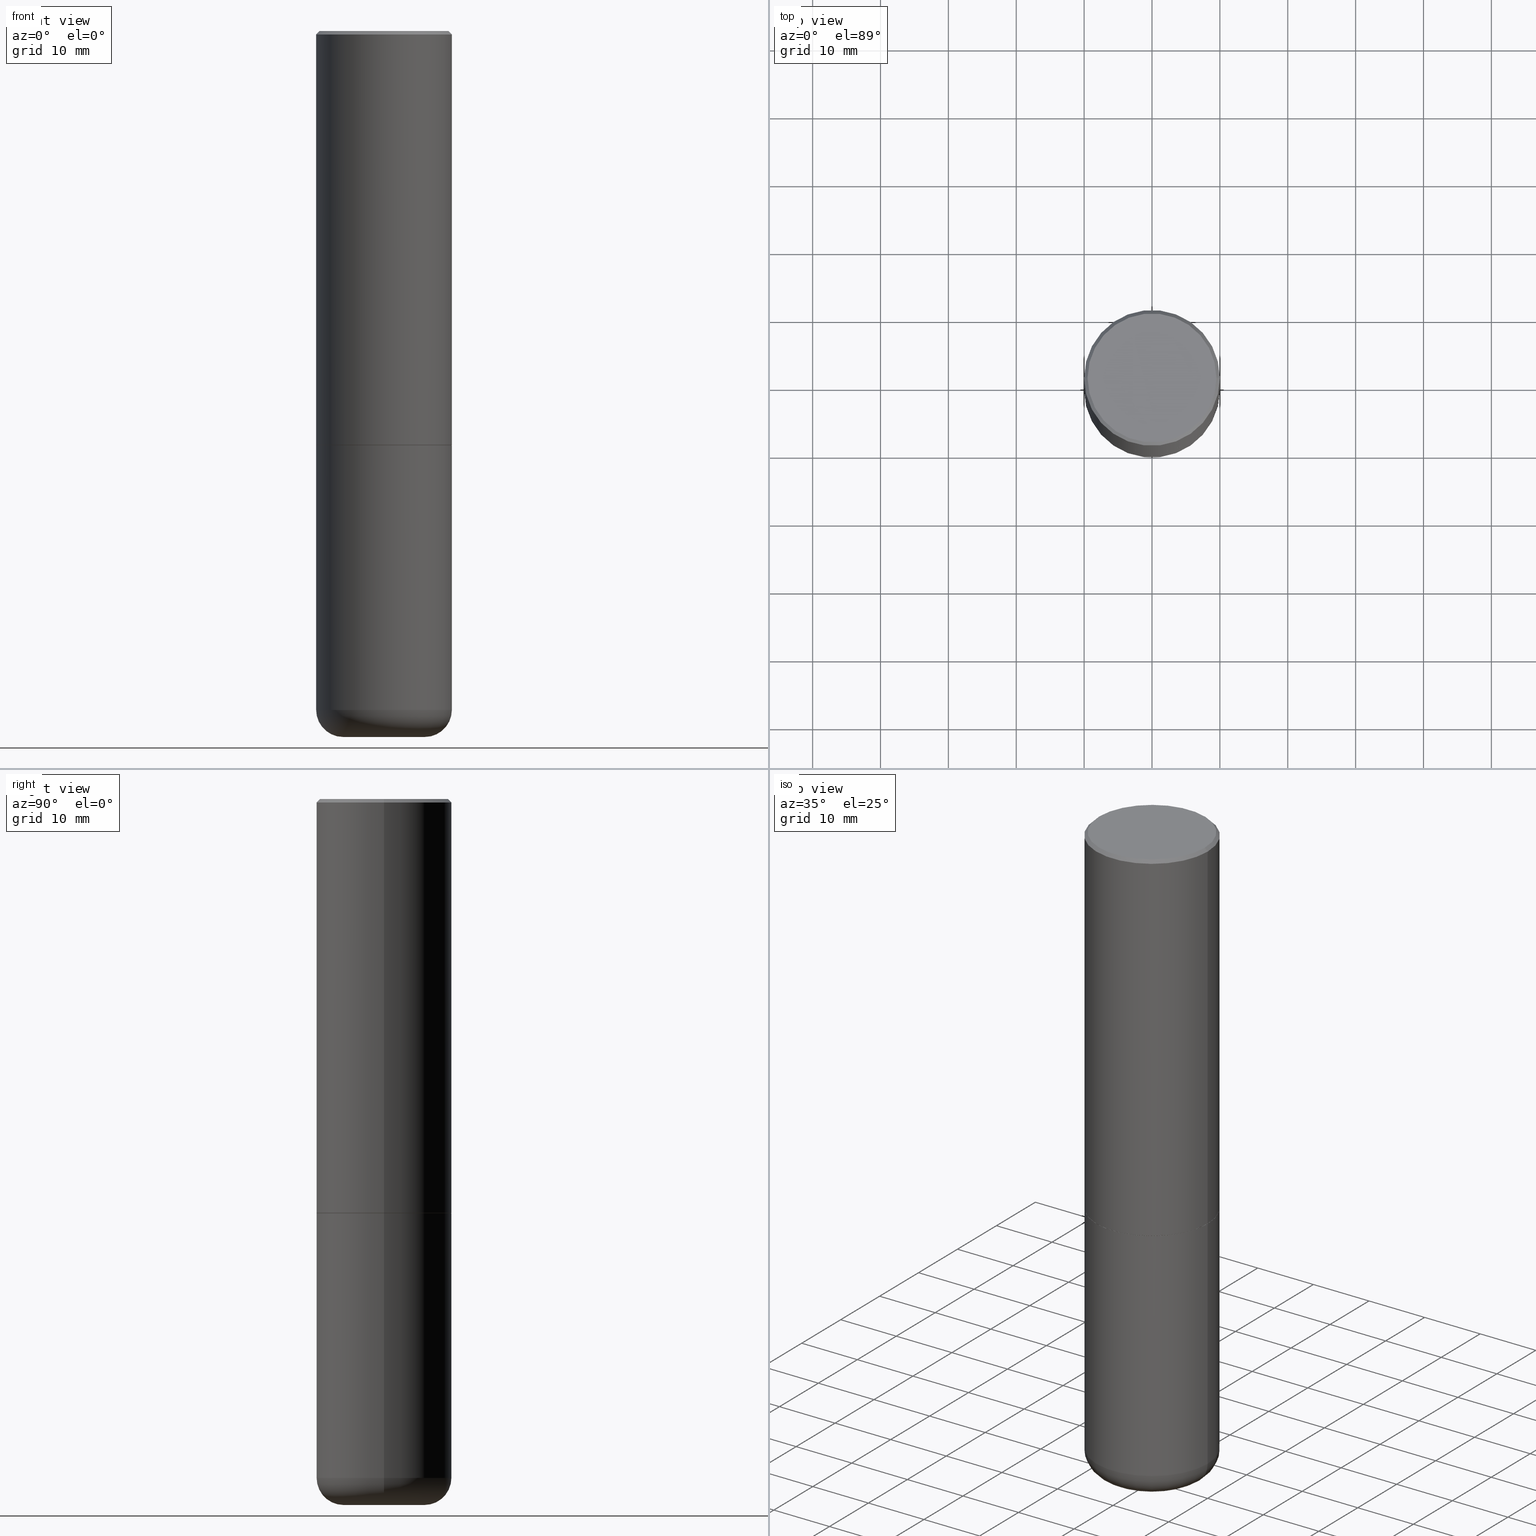
[diagram: canonical four-view strip — front | top / right | iso, engineering-drawing reading convention]
A machine part, canonical four-view strip (front | top / right | iso — engineering-drawing reading convention). The complete STEP part file that produces these views, byte-faithful:
ISO-10303-21;
HEADER;
FILE_DESCRIPTION (( 'STEP AP203' ),
    '1' );
FILE_NAME ('47067.STEP',
    '2024-03-05T17:09:22',
    ( '' ),
    ( '' ),
    'SwSTEP 2.0',
    'SolidWorks 2023',
    '' );
FILE_SCHEMA (( 'CONFIG_CONTROL_DESIGN' ));
ENDSEC;

DATA;
#1 = FACE_OUTER_BOUND ( 'NONE', #147, .T. ) ;
#2 = PRODUCT_DEFINITION_FORMATION_WITH_SPECIFIED_SOURCE ( 'ANY', '', #57, .NOT_KNOWN. ) ;
#3 = LENGTH_MEASURE_WITH_UNIT ( LENGTH_MEASURE( 0.02539999999999999897 ), #277 );
#4 = APPROVAL ( #371, 'UNSPECIFIED' ) ;
#5 = VERTEX_POINT ( 'NONE', #29 ) ;
#6 = PERSON_AND_ORGANIZATION ( #383, #262 ) ;
#7 = PERSON_AND_ORGANIZATION ( #383, #262 ) ;
#8 = LINE ( 'NONE', #71, #245 ) ;
#9 = CARTESIAN_POINT ( 'NONE',  ( -0.3937000000000003830, -1.428333113714341032E-15, -2.400600000000000289 ) ) ;
#10 = AXIS2_PLACEMENT_3D ( 'NONE', #278, #417, #255 ) ;
#11 = VERTEX_POINT ( 'NONE', #227 ) ;
#12 = CALENDAR_DATE ( 2024, 5, 3 ) ;
#13 = ADVANCED_FACE ( 'NONE', ( #350 ), #62, .T. ) ;
#14 = CARTESIAN_POINT ( 'NONE',  ( 0.000000000000000000, 0.000000000000000000, 0.000000000000000000 ) ) ;
#15 = AXIS2_PLACEMENT_3D ( 'NONE', #347, #60, #380 ) ;
#16 = ORIENTED_EDGE ( 'NONE', *, *, #265, .F. ) ;
#17 = ORIENTED_EDGE ( 'NONE', *, *, #300, .T. ) ;
#18 = CARTESIAN_POINT ( 'NONE',  ( -0.3937000000000001609, 2.797406750687515575E-15, -1.936584745033357296E-29 ) ) ;
#19 = DIRECTION ( 'NONE',  ( -1.000000000000000000, 6.982962677686265922E-15, 0.000000000000000000 ) ) ;
#20 = EDGE_CURVE ( 'NONE', #28, #177, #35, .T. ) ;
#21 = ORIENTED_EDGE ( 'NONE', *, *, #396, .F. ) ;
#22 = DIRECTION ( 'NONE',  ( -2.445468806185136597E-29, 3.491481338843145583E-15, 1.000000000000000000 ) ) ;
#23 = DIRECTION ( 'NONE',  ( -2.445468806185136597E-29, 3.491481338843145583E-15, 1.000000000000000000 ) ) ;
#24 = CONICAL_SURFACE ( 'NONE', #319, 0.3926999999999999935, 0.7853981633975507526 ) ;
#25 = ORIENTED_EDGE ( 'NONE', *, *, #191, .F. ) ;
#26 = FACE_OUTER_BOUND ( 'NONE', #266, .T. ) ;
#27 = MANIFOLD_SOLID_BREP ( 'Body-Move/Copy2[1]', #331 ) ;
#28 = VERTEX_POINT ( 'NONE', #96 ) ;
#29 = CARTESIAN_POINT ( 'NONE',  ( 0.3926999999999999935, -1.112735102689309604E-14, -2.401600000000000179 ) ) ;
#30 = DIRECTION ( 'NONE',  ( 1.000000000000000000, -6.982962677686262766E-15, 0.000000000000000000 ) ) ;
#31 = CONICAL_SURFACE ( 'NONE', #137, 0.3937000000000000499, 0.7853981633974472798 ) ;
#32 = CARTESIAN_POINT ( 'NONE',  ( 0.3736999999999997546, -2.667287895133366781E-15, 2.219626494852398384E-16 ) ) ;
#33 = ORIENTED_EDGE ( 'NONE', *, *, #285, .T. ) ;
#34 = PERSON_AND_ORGANIZATION ( #383, #262 ) ;
#35 = LINE ( 'NONE', #127, #230 ) ;
#36 = PERSON_AND_ORGANIZATION_ROLE ( 'design_supplier' ) ;
#37 = DIRECTION ( 'NONE',  ( -2.445468806185136597E-29, 3.491481338843145583E-15, 1.000000000000000000 ) ) ;
#38 = ORIENTED_EDGE ( 'NONE', *, *, #243, .F. ) ;
#39 = CARTESIAN_POINT ( 'NONE',  ( 9.627810689950883669E-29, -1.374596203102546341E-14, -3.937000000000000277 ) ) ;
#40 = CIRCLE ( 'NONE', #251, 0.3926999999999999935 ) ;
#41 = COORDINATED_UNIVERSAL_TIME_OFFSET ( 5, 0, .BEHIND. ) ;
#42 = EDGE_CURVE ( 'NONE', #311, #242, #193, .T. ) ;
#43 = APPLICATION_CONTEXT ( 'configuration controlled 3d designs of mechanical parts and assemblies' ) ;
#44 = CC_DESIGN_SECURITY_CLASSIFICATION ( #289, ( #2 ) ) ;
#45 = CIRCLE ( 'NONE', #264, 0.3736999999999997546 ) ;
#46 = CARTESIAN_POINT ( 'NONE',  ( 9.627810689950883669E-29, -1.374596203102546341E-14, -3.937000000000000277 ) ) ;
#47 = CARTESIAN_POINT ( 'NONE',  ( 4.890937612370294178E-31, -6.982962677686321191E-17, -0.02000000000000008715 ) ) ;
#48 = CARTESIAN_POINT ( 'NONE',  ( -0.3926999999999999935, -5.589541805687561872E-15, -2.401600000000000179 ) ) ;
#49 = DATE_TIME_ROLE ( 'classification_date' ) ;
#50 = ORIENTED_EDGE ( 'NONE', *, *, #20, .F. ) ;
#51 = EDGE_LOOP ( 'NONE', ( #315, #156 ) ) ;
#52 = DIRECTION ( 'NONE',  ( -1.000000000000000000, 6.982962677686265922E-15, -4.876176775795935793E-29 ) ) ;
#53 = EDGE_CURVE ( 'NONE', #116, #177, #418, .T. ) ;
#54 = CARTESIAN_POINT ( 'NONE',  ( 0.2362000000000000210, -1.539533781549495994E-14, -3.937000000000000277 ) ) ;
#55 = EDGE_LOOP ( 'NONE', ( #382, #274, #214, #276 ) ) ;
#56 = CYLINDRICAL_SURFACE ( 'NONE', #238, 0.3937000000000001609 ) ;
#57 = PRODUCT ( '47067', '47067', '', ( #146 ) ) ;
#58 = VERTEX_POINT ( 'NONE', #107 ) ;
#59 = AXIS2_PLACEMENT_3D ( 'NONE', #344, #78, #95 ) ;
#60 = DIRECTION ( 'NONE',  ( -2.445468806185136597E-29, 3.491481338843145583E-15, 1.000000000000000000 ) ) ;
#61 = PLANE ( 'NONE',  #403 ) ;
#62 = CYLINDRICAL_SURFACE ( 'NONE', #10, 0.3937000000000000499 ) ;
#63 = DIRECTION ( 'NONE',  ( 1.000000000000000000, -6.982962677686265922E-15, 4.876176775795935793E-29 ) ) ;
#64 = EDGE_LOOP ( 'NONE', ( #133, #121 ) ) ;
#65 = PERSON_AND_ORGANIZATION_ROLE ( 'design_owner' ) ;
#66 = ORIENTED_EDGE ( 'NONE', *, *, #346, .F. ) ;
#67 = DATE_AND_TIME ( #398, #210 ) ;
#68 = AXIS2_PLACEMENT_3D ( 'NONE', #305, #22, #222 ) ;
#69 = CC_DESIGN_APPROVAL ( #312, ( #239 ) ) ;
#70 = EDGE_CURVE ( 'NONE', #379, #177, #102, .T. ) ;
#71 = CARTESIAN_POINT ( 'NONE',  ( 0.3926999999999999935, -1.112735102689309604E-14, -2.401600000000000179 ) ) ;
#72 = DATE_AND_TIME ( #12, #187 ) ;
#73 = EDGE_CURVE ( 'NONE', #248, #311, #141, .T. ) ;
#74 = CALENDAR_DATE ( 2024, 5, 3 ) ;
#75 = CC_DESIGN_PERSON_AND_ORGANIZATION_ASSIGNMENT ( #7, #164, ( #289 ) ) ;
#76 = SHAPE_DEFINITION_REPRESENTATION ( #155, #195 ) ;
#77 = ADVANCED_FACE ( 'NONE', ( #172 ), #399, .T. ) ;
#78 = DIRECTION ( 'NONE',  ( -2.445468806185136597E-29, 3.491481338843145583E-15, 1.000000000000000000 ) ) ;
#79 = FACE_OUTER_BOUND ( 'NONE', #246, .T. ) ;
#80 = ORIENTED_EDGE ( 'NONE', *, *, #243, .T. ) ;
#81 = DIRECTION ( 'NONE',  ( -1.000000000000000000, 7.105427357601006592E-15, 0.000000000000000000 ) ) ;
#82 = EDGE_LOOP ( 'NONE', ( #145, #180, #317, #414 ) ) ;
#83 = AXIS2_PLACEMENT_3D ( 'NONE', #363, #139, #263 ) ;
#84 = ORIENTED_EDGE ( 'NONE', *, *, #73, .T. ) ;
#85 = CARTESIAN_POINT ( 'NONE',  ( -5.428027354543142984E-45, 7.749784485978325769E-31, 2.219626494852213988E-16 ) ) ;
#86 = DIRECTION ( 'NONE',  ( 1.000000000000000000, -6.982962677686266711E-15, 4.876176775795935793E-29 ) ) ;
#87 = ORIENTED_EDGE ( 'NONE', *, *, #267, .T. ) ;
#88 = CARTESIAN_POINT ( 'NONE',  ( 5.873037884934224349E-29, -8.385141583365698841E-15, -2.401600000000000179 ) ) ;
#89 = ORIENTED_EDGE ( 'NONE', *, *, #265, .T. ) ;
#90 = CARTESIAN_POINT ( 'NONE',  ( 0.3937000000000000499, -2.770807688499515734E-15, -0.02000000000000008715 ) ) ;
#91 = AXIS2_PLACEMENT_3D ( 'NONE', #281, #391, #360 ) ;
#92 = CC_DESIGN_DATE_AND_TIME_ASSIGNMENT ( #213, #49, ( #289 ) ) ;
#93 = ORIENTED_EDGE ( 'NONE', *, *, #53, .T. ) ;
#94 = PLANE ( 'NONE',  #348 ) ;
#95 = DIRECTION ( 'NONE',  ( 1.000000000000000000, -6.982962677686265922E-15, 0.000000000000000000 ) ) ;
#96 = CARTESIAN_POINT ( 'NONE',  ( 0.3937000000000002720, -1.113084250823194063E-14, -2.400600000000000289 ) ) ;
#97 = CARTESIAN_POINT ( 'NONE',  ( 0.2362000000000000766, -1.594524612636275486E-14, -4.094500000000000028 ) ) ;
#98 = EDGE_CURVE ( 'NONE', #177, #116, #287, .T. ) ;
#99 = LOCAL_TIME ( 12, 9, 22.00000000000000000, #236 ) ;
#100 = CIRCLE ( 'NONE', #170, 0.3937000000000000499 ) ;
#101 = CARTESIAN_POINT ( 'NONE',  ( 5.873037884934224349E-29, -8.385141583365698841E-15, -2.401600000000000179 ) ) ;
#102 = LINE ( 'NONE', #329, #105 ) ;
#103 = CALENDAR_DATE ( 2024, 5, 3 ) ;
#104 = CARTESIAN_POINT ( 'NONE',  ( 0.000000000000000000, 0.000000000000000000, 0.000000000000000000 ) ) ;
#105 = VECTOR ( 'NONE', #295, 39.37007874015748143 ) ;
#106 =( GEOMETRIC_REPRESENTATION_CONTEXT ( 3 ) GLOBAL_UNCERTAINTY_ASSIGNED_CONTEXT ( ( #208 ) ) GLOBAL_UNIT_ASSIGNED_CONTEXT ( ( #416, #198, #254 ) ) REPRESENTATION_CONTEXT ( 'NONE', 'WORKASPACE' ) );
#107 = CARTESIAN_POINT ( 'NONE',  ( -0.2362000000000000766, -1.178306184018292647E-14, -4.094500000000000028 ) ) ;
#108 = COORDINATED_UNIVERSAL_TIME_OFFSET ( 5, 0, .BEHIND. ) ;
#109 = DIRECTION ( 'NONE',  ( -2.445468806185136597E-29, 3.491481338843145583E-15, 1.000000000000000000 ) ) ;
#110 = DATE_AND_TIME ( #206, #99 ) ;
#111 = CARTESIAN_POINT ( 'NONE',  ( 9.627810689950883669E-29, -1.374596203102546341E-14, -3.937000000000000277 ) ) ;
#112 = VECTOR ( 'NONE', #201, 39.37007874015748143 ) ;
#113 = DIRECTION ( 'NONE',  ( -2.445468806185136597E-29, 3.491481338843145583E-15, 1.000000000000000000 ) ) ;
#114 = LINE ( 'NONE', #240, #204 ) ;
#115 = EDGE_CURVE ( 'NONE', #242, #11, #100, .T. ) ;
#116 = VERTEX_POINT ( 'NONE', #307 ) ;
#117 = CARTESIAN_POINT ( 'NONE',  ( -0.3936999999999999389, -1.094855528033794942E-14, -3.937000000000000277 ) ) ;
#118 = VECTOR ( 'NONE', #392, 39.37007874015748143 ) ;
#119 = ORIENTED_EDGE ( 'NONE', *, *, #70, .T. ) ;
#120 = CARTESIAN_POINT ( 'NONE',  ( 1.001297202692504102E-28, -1.429587034189325834E-14, -4.094500000000000028 ) ) ;
#121 = ORIENTED_EDGE ( 'NONE', *, *, #129, .T. ) ;
#122 = DIRECTION ( 'NONE',  ( -2.445468806185136597E-29, 3.491481338843145583E-15, 1.000000000000000000 ) ) ;
#123 = CYLINDRICAL_SURFACE ( 'NONE', #408, 0.3937000000000001609 ) ;
#124 = CARTESIAN_POINT ( 'NONE',  ( 5.873037884934224349E-29, -8.385141583365698841E-15, -2.401600000000000179 ) ) ;
#125 = CIRCLE ( 'NONE', #59, 0.3937000000000002720 ) ;
#126 = LOCAL_TIME ( 12, 9, 22.00000000000000000, #199 ) ;
#127 = CARTESIAN_POINT ( 'NONE',  ( 0.3937000000000001609, -2.749192406205084400E-15, 1.919750796630860732E-29 ) ) ;
#128 = CARTESIAN_POINT ( 'NONE',  ( 2.609533152651355831E-15, 0.3736999999999997546, -1.193785251583072147E-15 ) ) ;
#129 = EDGE_CURVE ( 'NONE', #379, #188, #296, .T. ) ;
#130 = ORIENTED_EDGE ( 'NONE', *, *, #169, .T. ) ;
#131 = EDGE_CURVE ( 'NONE', #248, #11, #114, .T. ) ;
#132 = DIRECTION ( 'NONE',  ( -1.000000000000000000, 6.982962677686265922E-15, -4.876176775795935793E-29 ) ) ;
#133 = ORIENTED_EDGE ( 'NONE', *, *, #191, .T. ) ;
#134 = CC_DESIGN_PERSON_AND_ORGANIZATION_ASSIGNMENT ( #234, #282, ( #239 ) ) ;
#135 = DIRECTION ( 'NONE',  ( 2.445468806185136597E-29, -3.491481338843145583E-15, -1.000000000000000000 ) ) ;
#136 = PERSON_AND_ORGANIZATION ( #383, #262 ) ;
#137 = AXIS2_PLACEMENT_3D ( 'NONE', #318, #135, #393 ) ;
#138 = FACE_OUTER_BOUND ( 'NONE', #356, .T. ) ;
#139 = DIRECTION ( 'NONE',  ( -2.445468806185136597E-29, 3.491481338843145583E-15, 1.000000000000000000 ) ) ;
#140 = CARTESIAN_POINT ( 'NONE',  ( -0.3937000000000000499, 2.679362779428219918E-15, -0.02000000000000008715 ) ) ;
#141 = CIRCLE ( 'NONE', #157, 0.3937000000000000499 ) ;
#142 = AXIS2_PLACEMENT_3D ( 'NONE', #54, #405, #303 ) ;
#143 = AXIS2_PLACEMENT_3D ( 'NONE', #101, #200, #325 ) ;
#144 = ORIENTED_EDGE ( 'NONE', *, *, #396, .T. ) ;
#145 = ORIENTED_EDGE ( 'NONE', *, *, #169, .F. ) ;
#146 = MECHANICAL_CONTEXT ( 'NONE', #345, 'mechanical' ) ;
#147 = EDGE_LOOP ( 'NONE', ( #184, #130, #203, #50 ) ) ;
#148 = AXIS2_PLACEMENT_3D ( 'NONE', #387, #279, #30 ) ;
#149 = EDGE_LOOP ( 'NONE', ( #375, #119, #221, #343 ) ) ;
#150 = ADVANCED_FACE ( 'NONE', ( #79 ), #338, .T. ) ;
#151 = ORIENTED_EDGE ( 'NONE', *, *, #158, .T. ) ;
#152 = DIRECTION ( 'NONE',  ( 2.438088387897960049E-29, -3.491481338843145188E-15, -1.000000000000000000 ) ) ;
#153 = CC_DESIGN_PERSON_AND_ORGANIZATION_ASSIGNMENT ( #34, #168, ( #2 ) ) ;
#154 = CARTESIAN_POINT ( 'NONE',  ( 5.870592416128038746E-29, -8.381650102026855834E-15, -2.400600000000000289 ) ) ;
#155 = PRODUCT_DEFINITION_SHAPE ( 'NONE', 'NONE',  #239 ) ;
#156 = ORIENTED_EDGE ( 'NONE', *, *, #321, .T. ) ;
#157 = AXIS2_PLACEMENT_3D ( 'NONE', #46, #109, #334 ) ;
#158 = EDGE_CURVE ( 'NONE', #58, #248, #332, .T. ) ;
#159 = AXIS2_PLACEMENT_3D ( 'NONE', #104, #286, #365 ) ;
#160 = DIRECTION ( 'NONE',  ( -2.445468806185136877E-29, 3.491481338843145188E-15, 1.000000000000000000 ) ) ;
#161 = ORIENTED_EDGE ( 'NONE', *, *, #131, .T. ) ;
#162 = PERSON_AND_ORGANIZATION ( #383, #262 ) ;
#163 = LINE ( 'NONE', #140, #118 ) ;
#164 = PERSON_AND_ORGANIZATION_ROLE ( 'classification_officer' ) ;
#165 = CARTESIAN_POINT ( 'NONE',  ( 0.3936999999999999389, -1.649515443723054663E-14, -3.937000000000000277 ) ) ;
#166 = VERTEX_POINT ( 'NONE', #48 ) ;
#167 = CIRCLE ( 'NONE', #68, 0.3926999999999999935 ) ;
#168 = PERSON_AND_ORGANIZATION_ROLE ( 'creator' ) ;
#169 = EDGE_CURVE ( 'NONE', #322, #116, #173, .T. ) ;
#170 = AXIS2_PLACEMENT_3D ( 'NONE', #372, #374, #268 ) ;
#171 = CC_DESIGN_APPROVAL ( #4, ( #289 ) ) ;
#172 = FACE_OUTER_BOUND ( 'NONE', #324, .T. ) ;
#173 = LINE ( 'NONE', #18, #388 ) ;
#174 = CLOSED_SHELL ( 'NONE', ( #269, #183, #320, #335, #353, #77, #369, #219 ) ) ;
#175 = AXIS2_PLACEMENT_3D ( 'NONE', #154, #189, #283 ) ;
#176 = APPROVAL_PERSON_ORGANIZATION ( #367, #4, #235 ) ;
#177 = VERTEX_POINT ( 'NONE', #90 ) ;
#178 = DIRECTION ( 'NONE',  ( -1.000000000000000000, 6.982962677686265922E-15, -4.876176775795935793E-29 ) ) ;
#179 = DIRECTION ( 'NONE',  ( 2.445468806185136597E-29, -3.491481338843145583E-15, -1.000000000000000000 ) ) ;
#180 = ORIENTED_EDGE ( 'NONE', *, *, #402, .T. ) ;
#181 = DIRECTION ( 'NONE',  ( -2.445468806185136877E-29, 3.491481338843145188E-15, 1.000000000000000000 ) ) ;
#182 = FACE_OUTER_BOUND ( 'NONE', #298, .T. ) ;
#183 = ADVANCED_FACE ( 'NONE', ( #1 ), #123, .T. ) ;
#184 = ORIENTED_EDGE ( 'NONE', *, *, #368, .T. ) ;
#185 = DIRECTION ( 'NONE',  ( 1.000000000000000000, -6.982962677686266711E-15, 4.876176775795935793E-29 ) ) ;
#186 = CIRCLE ( 'NONE', #142, 0.1574999999999997791 ) ;
#187 = LOCAL_TIME ( 12, 9, 22.00000000000000000, #327 ) ;
#188 = VERTEX_POINT ( 'NONE', #415 ) ;
#189 = DIRECTION ( 'NONE',  ( -2.445468806185136597E-29, 3.491481338843145583E-15, 1.000000000000000000 ) ) ;
#190 = ORIENTED_EDGE ( 'NONE', *, *, #321, .F. ) ;
#191 = EDGE_CURVE ( 'NONE', #188, #379, #45, .T. ) ;
#192 = CARTESIAN_POINT ( 'NONE',  ( 5.873037884934224349E-29, -8.385141583365698841E-15, -2.401600000000000179 ) ) ;
#193 = LINE ( 'NONE', #351, #237 ) ;
#194 = AXIS2_PLACEMENT_3D ( 'NONE', #120, #302, #407 ) ;
#195 = ADVANCED_BREP_SHAPE_REPRESENTATION ( '47067', ( #27, #306, #159 ), #106 ) ;
#196 = APPROVAL_DATE_TIME ( #67, #323 ) ;
#197 = FACE_OUTER_BOUND ( 'NONE', #55, .T. ) ;
#198 =( NAMED_UNIT ( * ) PLANE_ANGLE_UNIT ( ) SI_UNIT ( $, .RADIAN. ) );
#199 = COORDINATED_UNIVERSAL_TIME_OFFSET ( 5, 0, .BEHIND. ) ;
#200 = DIRECTION ( 'NONE',  ( -2.445468806185136597E-29, 3.491481338843145583E-15, 1.000000000000000000 ) ) ;
#201 = DIRECTION ( 'NONE',  ( -0.7071067811866199593, 7.493145998870616062E-15, 0.7071067811864750752 ) ) ;
#202 = DIRECTION ( 'NONE',  ( 1.000000000000000000, -6.982962677686266711E-15, 4.883557194083112340E-29 ) ) ;
#203 = ORIENTED_EDGE ( 'NONE', *, *, #98, .F. ) ;
#204 = VECTOR ( 'NONE', #406, 39.37007874015748143 ) ;
#205 = APPROVAL_STATUS ( 'not_yet_approved' ) ;
#206 = CALENDAR_DATE ( 2024, 5, 3 ) ;
#207 = EDGE_CURVE ( 'NONE', #58, #301, #273, .T. ) ;
#208 = UNCERTAINTY_MEASURE_WITH_UNIT (LENGTH_MEASURE( 1.000000000000000082E-05 ), #416, 'distance_accuracy_value', 'NONE');
#209 = AXIS2_PLACEMENT_3D ( 'NONE', #111, #397, #202 ) ;
#210 = LOCAL_TIME ( 12, 9, 22.00000000000000000, #41 ) ;
#211 = DIRECTION ( 'NONE',  ( 7.105427357601001859E-15, 1.000000000000000000, -3.491481338843145583E-15 ) ) ;
#212 = FACE_OUTER_BOUND ( 'NONE', #82, .T. ) ;
#213 = DATE_AND_TIME ( #74, #299 ) ;
#214 = ORIENTED_EDGE ( 'NONE', *, *, #346, .T. ) ;
#215 = FACE_OUTER_BOUND ( 'NONE', #64, .T. ) ;
#216 = AXIS2_PLACEMENT_3D ( 'NONE', #14, #410, #373 ) ;
#217 = ORIENTED_EDGE ( 'NONE', *, *, #42, .F. ) ;
#218 = DIRECTION ( 'NONE',  ( -2.445468806185136597E-29, 3.491481338843145583E-15, 1.000000000000000000 ) ) ;
#219 = ADVANCED_FACE ( 'NONE', ( #215 ), #94, .F. ) ;
#220 = CARTESIAN_POINT ( 'NONE',  ( 0.000000000000000000, 0.000000000000000000, 0.000000000000000000 ) ) ;
#221 = ORIENTED_EDGE ( 'NONE', *, *, #98, .T. ) ;
#222 = DIRECTION ( 'NONE',  ( 1.000000000000000000, -6.982962677686268288E-15, 0.000000000000000000 ) ) ;
#223 = DIRECTION ( 'NONE',  ( 1.000000000000000000, -6.982962677686266711E-15, 4.877734241229879050E-29 ) ) ;
#224 = ORIENTED_EDGE ( 'NONE', *, *, #42, .T. ) ;
#225 = CIRCLE ( 'NONE', #175, 0.3937000000000002720 ) ;
#226 = APPROVAL_PERSON_ORGANIZATION ( #259, #312, #291 ) ;
#227 = CARTESIAN_POINT ( 'NONE',  ( -0.3937000000000000499, -8.268145056508066341E-15, -2.401600000000000179 ) ) ;
#228 = ADVANCED_FACE ( 'NONE', ( #26 ), #313, .T. ) ;
#229 = APPROVAL_STATUS ( 'not_yet_approved' ) ;
#230 = VECTOR ( 'NONE', #390, 39.37007874015748143 ) ;
#231 = AXIS2_PLACEMENT_3D ( 'NONE', #293, #304, #241 ) ;
#232 = CC_DESIGN_APPROVAL ( #323, ( #2 ) ) ;
#233 = FACE_OUTER_BOUND ( 'NONE', #308, .T. ) ;
#234 = PERSON_AND_ORGANIZATION ( #383, #262 ) ;
#235 = APPROVAL_ROLE ( '' ) ;
#236 = COORDINATED_UNIVERSAL_TIME_OFFSET ( 5, 0, .BEHIND. ) ;
#237 = VECTOR ( 'NONE', #160, 39.37007874015748143 ) ;
#238 = AXIS2_PLACEMENT_3D ( 'NONE', #220, #113, #86 ) ;
#239 = PRODUCT_DEFINITION ( 'UNKNOWN', '', #2, #333 ) ;
#240 = CARTESIAN_POINT ( 'NONE',  ( -0.3937000000000000499, 2.797406750687514786E-15, -1.936584745033356735E-29 ) ) ;
#241 = DIRECTION ( 'NONE',  ( 1.000000000000000000, -6.982962677686265922E-15, 0.000000000000000000 ) ) ;
#242 = VERTEX_POINT ( 'NONE', #412 ) ;
#243 = EDGE_CURVE ( 'NONE', #301, #58, #394, .T. ) ;
#244 = FACE_OUTER_BOUND ( 'NONE', #272, .T. ) ;
#245 = VECTOR ( 'NONE', #260, 39.37007874015748143 ) ;
#246 = EDGE_LOOP ( 'NONE', ( #80, #151, #16, #66 ) ) ;
#247 = PRODUCT_RELATED_PRODUCT_CATEGORY ( 'detail', '', ( #57 ) ) ;
#248 = VERTEX_POINT ( 'NONE', #117 ) ;
#249 = DIRECTION ( 'NONE',  ( -2.438088387897960049E-29, 3.491481338843145188E-15, 1.000000000000000000 ) ) ;
#250 = CARTESIAN_POINT ( 'NONE',  ( 1.662671372229937224E-28, -4.824615803317197833E-15, -4.094500000000000028 ) ) ;
#251 = AXIS2_PLACEMENT_3D ( 'NONE', #88, #122, #384 ) ;
#252 = CC_DESIGN_PERSON_AND_ORGANIZATION_ASSIGNMENT ( #162, #36, ( #2 ) ) ;
#253 = CARTESIAN_POINT ( 'NONE',  ( 0.000000000000000000, 0.000000000000000000, 0.000000000000000000 ) ) ;
#254 =( NAMED_UNIT ( * ) SI_UNIT ( $, .STERADIAN. ) SOLID_ANGLE_UNIT ( ) );
#255 = DIRECTION ( 'NONE',  ( 1.000000000000000000, -6.982962677686265922E-15, 4.876176775795935793E-29 ) ) ;
#256 = DIRECTION ( 'NONE',  ( 1.000000000000000000, -6.982962677686266711E-15, 4.883557194083112340E-29 ) ) ;
#257 = ORIENTED_EDGE ( 'NONE', *, *, #207, .F. ) ;
#258 = AXIS2_PLACEMENT_3D ( 'NONE', #39, #37, #256 ) ;
#259 = PERSON_AND_ORGANIZATION ( #383, #262 ) ;
#260 = DIRECTION ( 'NONE',  ( 0.7071067811866199593, -2.468850131083015945E-15, 0.7071067811864750752 ) ) ;
#261 = DATE_AND_TIME ( #103, #126 ) ;
#262 = ORGANIZATION ( 'UNSPECIFIED', 'UNSPECIFIED', '' ) ;
#263 = DIRECTION ( 'NONE',  ( 1.000000000000000000, -6.982962677686268288E-15, 0.000000000000000000 ) ) ;
#264 = AXIS2_PLACEMENT_3D ( 'NONE', #85, #275, #309 ) ;
#265 = EDGE_CURVE ( 'NONE', #311, #248, #288, .T. ) ;
#266 = EDGE_LOOP ( 'NONE', ( #38, #257 ) ) ;
#267 = EDGE_CURVE ( 'NONE', #5, #166, #40, .T. ) ;
#268 = DIRECTION ( 'NONE',  ( 1.000000000000000000, -6.982962677686265133E-15, 0.000000000000000000 ) ) ;
#269 = ADVANCED_FACE ( 'NONE', ( #244 ), #24, .T. ) ;
#270 = ORIENTED_EDGE ( 'NONE', *, *, #368, .F. ) ;
#271 = CARTESIAN_POINT ( 'NONE',  ( -5.428027354543142984E-45, 7.749784485978325769E-31, 2.219626494852213988E-16 ) ) ;
#272 = EDGE_LOOP ( 'NONE', ( #87, #144, #270, #326 ) ) ;
#273 = CIRCLE ( 'NONE', #148, 0.2362000000000000766 ) ;
#274 = ORIENTED_EDGE ( 'NONE', *, *, #207, .T. ) ;
#275 = DIRECTION ( 'NONE',  ( -2.445468806185136597E-29, 3.491481338843145583E-15, 1.000000000000000000 ) ) ;
#276 = ORIENTED_EDGE ( 'NONE', *, *, #73, .F. ) ;
#277 =( LENGTH_UNIT ( ) NAMED_UNIT ( * ) SI_UNIT ( $, .METRE. ) );
#278 = CARTESIAN_POINT ( 'NONE',  ( 0.000000000000000000, 0.000000000000000000, 0.000000000000000000 ) ) ;
#279 = DIRECTION ( 'NONE',  ( -2.445468806185136597E-29, 3.491481338843145583E-15, 1.000000000000000000 ) ) ;
#280 = AXIS2_PLACEMENT_3D ( 'NONE', #271, #23, #223 ) ;
#281 = CARTESIAN_POINT ( 'NONE',  ( 4.890937612370294178E-31, -6.982962677686321191E-17, -0.02000000000000008715 ) ) ;
#282 = PERSON_AND_ORGANIZATION_ROLE ( 'creator' ) ;
#283 = DIRECTION ( 'NONE',  ( 1.000000000000000000, -6.982962677686265922E-15, 0.000000000000000000 ) ) ;
#284 = ORIENTED_EDGE ( 'NONE', *, *, #70, .F. ) ;
#285 = EDGE_CURVE ( 'NONE', #166, #5, #167, .T. ) ;
#286 = DIRECTION ( 'NONE',  ( 0.000000000000000000, 0.000000000000000000, 1.000000000000000000 ) ) ;
#287 = CIRCLE ( 'NONE', #231, 0.3937000000000000499 ) ;
#288 = CIRCLE ( 'NONE', #15, 0.3937000000000000499 ) ;
#289 = SECURITY_CLASSIFICATION ( '', '', #294 ) ;
#290 = ORIENTED_EDGE ( 'NONE', *, *, #115, .F. ) ;
#291 = APPROVAL_ROLE ( '' ) ;
#292 = ADVANCED_FACE ( 'NONE', ( #197 ), #328, .T. ) ;
#293 = CARTESIAN_POINT ( 'NONE',  ( 4.890937612370294178E-31, -6.982962677686321191E-17, -0.02000000000000008715 ) ) ;
#294 = SECURITY_CLASSIFICATION_LEVEL ( 'unclassified' ) ;
#295 = DIRECTION ( 'NONE',  ( 0.7071067811865467956, -7.319954787623254468E-15, -0.7071067811865482389 ) ) ;
#296 = CIRCLE ( 'NONE', #280, 0.3736999999999997546 ) ;
#297 = EDGE_CURVE ( 'NONE', #188, #116, #163, .T. ) ;
#298 = EDGE_LOOP ( 'NONE', ( #89, #161, #290, #217 ) ) ;
#299 = LOCAL_TIME ( 12, 9, 22.00000000000000000, #108 ) ;
#300 = EDGE_CURVE ( 'NONE', #5, #28, #8, .T. ) ;
#301 = VERTEX_POINT ( 'NONE', #97 ) ;
#302 = DIRECTION ( 'NONE',  ( -2.445468806185136597E-29, 3.491481338843145583E-15, 1.000000000000000000 ) ) ;
#303 = DIRECTION ( 'NONE',  ( 1.000000000000000000, -6.982962677686272233E-15, 0.000000000000000000 ) ) ;
#304 = DIRECTION ( 'NONE',  ( -2.445468806185136597E-29, 3.491481338843145583E-15, 1.000000000000000000 ) ) ;
#305 = CARTESIAN_POINT ( 'NONE',  ( 5.873037884934224349E-29, -8.385141583365698841E-15, -2.401600000000000179 ) ) ;
#306 = MANIFOLD_SOLID_BREP ( 'Body-Move/Copy2[2]', #174 ) ;
#307 = CARTESIAN_POINT ( 'NONE',  ( -0.3937000000000000499, 2.679362779428219918E-15, -0.02000000000000008715 ) ) ;
#308 = EDGE_LOOP ( 'NONE', ( #409, #411 ) ) ;
#309 = DIRECTION ( 'NONE',  ( 1.000000000000000000, -6.982962677686266711E-15, 4.877734241229879050E-29 ) ) ;
#310 = CIRCLE ( 'NONE', #143, 0.3937000000000000499 ) ;
#311 = VERTEX_POINT ( 'NONE', #165 ) ;
#312 = APPROVAL ( #229, 'UNSPECIFIED' ) ;
#313 = PLANE ( 'NONE',  #386 ) ;
#314 = LINE ( 'NONE', #362, #112 ) ;
#315 = ORIENTED_EDGE ( 'NONE', *, *, #115, .T. ) ;
#316 = DIRECTION ( 'NONE',  ( -2.445468806185136597E-29, 3.491481338843145583E-15, 1.000000000000000000 ) ) ;
#317 = ORIENTED_EDGE ( 'NONE', *, *, #20, .T. ) ;
#318 = CARTESIAN_POINT ( 'NONE',  ( 4.890937612370294178E-31, -6.982962677686321191E-17, -0.02000000000000008715 ) ) ;
#319 = AXIS2_PLACEMENT_3D ( 'NONE', #378, #218, #342 ) ;
#320 = ADVANCED_FACE ( 'NONE', ( #354 ), #31, .T. ) ;
#321 = EDGE_CURVE ( 'NONE', #11, #242, #310, .T. ) ;
#322 = VERTEX_POINT ( 'NONE', #9 ) ;
#323 = APPROVAL ( #205, 'UNSPECIFIED' ) ;
#324 = EDGE_LOOP ( 'NONE', ( #21, #33, #17, #385 ) ) ;
#325 = DIRECTION ( 'NONE',  ( 1.000000000000000000, -6.982962677686265133E-15, 0.000000000000000000 ) ) ;
#326 = ORIENTED_EDGE ( 'NONE', *, *, #300, .F. ) ;
#327 = COORDINATED_UNIVERSAL_TIME_OFFSET ( 5, 0, .BEHIND. ) ;
#328 = TOROIDAL_SURFACE ( 'NONE', #258, 0.2362000000000000210, 0.1574999999999998346 ) ;
#329 = CARTESIAN_POINT ( 'NONE',  ( 0.3937000000000000499, -2.770807688499515734E-15, -0.02000000000000008715 ) ) ;
#330 = APPROVAL_PERSON_ORGANIZATION ( #6, #323, #357 ) ;
#331 = CLOSED_SHELL ( 'NONE', ( #355, #150, #400, #13, #292, #228 ) ) ;
#332 = CIRCLE ( 'NONE', #376, 0.1574999999999997791 ) ;
#333 = DESIGN_CONTEXT ( 'detailed design', #43, 'design' ) ;
#334 = DIRECTION ( 'NONE',  ( 1.000000000000000000, -6.982962677686267499E-15, 0.000000000000000000 ) ) ;
#335 = ADVANCED_FACE ( 'NONE', ( #138 ), #358, .T. ) ;
#336 = CYLINDRICAL_SURFACE ( 'NONE', #216, 0.3937000000000000499 ) ;
#337 = CARTESIAN_POINT ( 'NONE',  ( -0.2362000000000000210, -1.206766008916010702E-14, -3.937000000000000277 ) ) ;
#338 = TOROIDAL_SURFACE ( 'NONE', #209, 0.2362000000000000210, 0.1574999999999998346 ) ;
#339 = ORIENTED_EDGE ( 'NONE', *, *, #297, .T. ) ;
#340 = DIRECTION ( 'NONE',  ( 2.438088387897960049E-29, -3.491481338843145188E-15, -1.000000000000000000 ) ) ;
#341 = ORIENTED_EDGE ( 'NONE', *, *, #131, .F. ) ;
#342 = DIRECTION ( 'NONE',  ( 1.000000000000000000, -6.982962677686268288E-15, 0.000000000000000000 ) ) ;
#343 = ORIENTED_EDGE ( 'NONE', *, *, #297, .F. ) ;
#344 = CARTESIAN_POINT ( 'NONE',  ( 5.870592416128038746E-29, -8.381650102026855834E-15, -2.400600000000000289 ) ) ;
#345 = APPLICATION_CONTEXT ( 'configuration controlled 3d designs of mechanical parts and assemblies' ) ;
#346 = EDGE_CURVE ( 'NONE', #301, #311, #186, .T. ) ;
#347 = CARTESIAN_POINT ( 'NONE',  ( 9.627810689950883669E-29, -1.374596203102546341E-14, -3.937000000000000277 ) ) ;
#348 = AXIS2_PLACEMENT_3D ( 'NONE', #128, #340, #52 ) ;
#349 = FACE_OUTER_BOUND ( 'NONE', #51, .T. ) ;
#350 = FACE_OUTER_BOUND ( 'NONE', #377, .T. ) ;
#351 = CARTESIAN_POINT ( 'NONE',  ( 0.3937000000000000499, -2.749192406205083217E-15, 1.919750796630860172E-29 ) ) ;
#352 = APPLICATION_PROTOCOL_DEFINITION ( 'international standard', 'config_control_design', 1994, #43 ) ;
#353 = ADVANCED_FACE ( 'NONE', ( #212 ), #56, .T. ) ;
#354 = FACE_OUTER_BOUND ( 'NONE', #149, .T. ) ;
#355 = ADVANCED_FACE ( 'NONE', ( #182 ), #336, .T. ) ;
#356 = EDGE_LOOP ( 'NONE', ( #284, #25, #339, #93 ) ) ;
#357 = APPROVAL_ROLE ( '' ) ;
#358 = CONICAL_SURFACE ( 'NONE', #370, 0.3937000000000000499, 0.7853981633974472798 ) ;
#359 = PLANE ( 'NONE',  #366 ) ;
#360 = DIRECTION ( 'NONE',  ( 1.000000000000000000, -6.982962677686265922E-15, 0.000000000000000000 ) ) ;
#361 = DATE_TIME_ROLE ( 'creation_date' ) ;
#362 = CARTESIAN_POINT ( 'NONE',  ( -0.3926999999999999935, -5.594840260035785063E-15, -2.401600000000000179 ) ) ;
#363 = CARTESIAN_POINT ( 'NONE',  ( 5.873037884934224349E-29, -8.385141583365698841E-15, -2.401600000000000179 ) ) ;
#364 = APPROVAL_DATE_TIME ( #261, #312 ) ;
#365 = DIRECTION ( 'NONE',  ( 1.000000000000000000, 0.000000000000000000, 0.000000000000000000 ) ) ;
#366 = AXIS2_PLACEMENT_3D ( 'NONE', #124, #249, #63 ) ;
#367 = PERSON_AND_ORGANIZATION ( #383, #262 ) ;
#368 = EDGE_CURVE ( 'NONE', #28, #322, #125, .T. ) ;
#369 = ADVANCED_FACE ( 'NONE', ( #233 ), #359, .F. ) ;
#370 = AXIS2_PLACEMENT_3D ( 'NONE', #47, #179, #19 ) ;
#371 = APPROVAL_STATUS ( 'not_yet_approved' ) ;
#372 = CARTESIAN_POINT ( 'NONE',  ( 5.873037884934224349E-29, -8.385141583365698841E-15, -2.401600000000000179 ) ) ;
#373 = DIRECTION ( 'NONE',  ( 1.000000000000000000, -6.982962677686265922E-15, 4.876176775795935793E-29 ) ) ;
#374 = DIRECTION ( 'NONE',  ( -2.445468806185136597E-29, 3.491481338843145583E-15, 1.000000000000000000 ) ) ;
#375 = ORIENTED_EDGE ( 'NONE', *, *, #129, .F. ) ;
#376 = AXIS2_PLACEMENT_3D ( 'NONE', #337, #211, #81 ) ;
#377 = EDGE_LOOP ( 'NONE', ( #341, #84, #224, #190 ) ) ;
#378 = CARTESIAN_POINT ( 'NONE',  ( 5.873037884934224349E-29, -8.385141583365698841E-15, -2.401600000000000179 ) ) ;
#379 = VERTEX_POINT ( 'NONE', #32 ) ;
#380 = DIRECTION ( 'NONE',  ( 1.000000000000000000, -6.982962677686267499E-15, 0.000000000000000000 ) ) ;
#381 = DIMENSIONAL_EXPONENTS ( 1.000000000000000000, 0.000000000000000000, 0.000000000000000000, 0.000000000000000000, 0.000000000000000000, 0.000000000000000000, 0.000000000000000000 ) ;
#382 = ORIENTED_EDGE ( 'NONE', *, *, #158, .F. ) ;
#383 = PERSON ( 'UNSPECIFIED', 'UNSPECIFIED', 'UNSPECIFIED', ('UNSPECIFIED'), ('UNSPECIFIED'), ('UNSPECIFIED') ) ;
#384 = DIRECTION ( 'NONE',  ( 1.000000000000000000, -6.982962677686268288E-15, 0.000000000000000000 ) ) ;
#385 = ORIENTED_EDGE ( 'NONE', *, *, #402, .F. ) ;
#386 = AXIS2_PLACEMENT_3D ( 'NONE', #250, #152, #178 ) ;
#387 = CARTESIAN_POINT ( 'NONE',  ( 1.001297202692504102E-28, -1.429587034189325834E-14, -4.094500000000000028 ) ) ;
#388 = VECTOR ( 'NONE', #181, 39.37007874015748143 ) ;
#389 = DIRECTION ( 'NONE',  ( 2.438088387897960049E-29, -3.491481338843145188E-15, -1.000000000000000000 ) ) ;
#390 = DIRECTION ( 'NONE',  ( -2.445468806185136877E-29, 3.491481338843145188E-15, 1.000000000000000000 ) ) ;
#391 = DIRECTION ( 'NONE',  ( -2.445468806185136597E-29, 3.491481338843145583E-15, 1.000000000000000000 ) ) ;
#392 = DIRECTION ( 'NONE',  ( -0.7071067811865467956, 2.468850131082249172E-15, -0.7071067811865482389 ) ) ;
#393 = DIRECTION ( 'NONE',  ( -1.000000000000000000, 6.982962677686265922E-15, 0.000000000000000000 ) ) ;
#394 = CIRCLE ( 'NONE', #194, 0.2362000000000000766 ) ;
#395 = APPLICATION_PROTOCOL_DEFINITION ( 'international standard', 'config_control_design', 1994, #345 ) ;
#396 = EDGE_CURVE ( 'NONE', #166, #322, #314, .T. ) ;
#397 = DIRECTION ( 'NONE',  ( -2.445468806185136597E-29, 3.491481338843145583E-15, 1.000000000000000000 ) ) ;
#398 = CALENDAR_DATE ( 2024, 5, 3 ) ;
#399 = CONICAL_SURFACE ( 'NONE', #83, 0.3926999999999999935, 0.7853981633975507526 ) ;
#400 = ADVANCED_FACE ( 'NONE', ( #349 ), #61, .F. ) ;
#401 = APPROVAL_DATE_TIME ( #110, #4 ) ;
#402 = EDGE_CURVE ( 'NONE', #322, #28, #225, .T. ) ;
#403 = AXIS2_PLACEMENT_3D ( 'NONE', #192, #389, #132 ) ;
#404 = CC_DESIGN_DATE_AND_TIME_ASSIGNMENT ( #72, #361, ( #239 ) ) ;
#405 = DIRECTION ( 'NONE',  ( -6.982962677686266711E-15, -1.000000000000000000, 3.491481338843145583E-15 ) ) ;
#406 = DIRECTION ( 'NONE',  ( -2.445468806185136877E-29, 3.491481338843145188E-15, 1.000000000000000000 ) ) ;
#407 = DIRECTION ( 'NONE',  ( 1.000000000000000000, -6.982962677686262766E-15, 0.000000000000000000 ) ) ;
#408 = AXIS2_PLACEMENT_3D ( 'NONE', #253, #316, #185 ) ;
#409 = ORIENTED_EDGE ( 'NONE', *, *, #267, .F. ) ;
#410 = DIRECTION ( 'NONE',  ( -2.445468806185136597E-29, 3.491481338843145583E-15, 1.000000000000000000 ) ) ;
#411 = ORIENTED_EDGE ( 'NONE', *, *, #285, .F. ) ;
#412 = CARTESIAN_POINT ( 'NONE',  ( 0.3937000000000000499, -1.113433398957078206E-14, -2.401600000000000179 ) ) ;
#413 = CC_DESIGN_PERSON_AND_ORGANIZATION_ASSIGNMENT ( #136, #65, ( #57 ) ) ;
#414 = ORIENTED_EDGE ( 'NONE', *, *, #53, .F. ) ;
#415 = CARTESIAN_POINT ( 'NONE',  ( -0.3736999999999997546, 2.644447966039789058E-15, 2.219626494852030085E-16 ) ) ;
#416 =( CONVERSION_BASED_UNIT ( 'INCH', #3 ) LENGTH_UNIT ( ) NAMED_UNIT ( #381 ) );
#417 = DIRECTION ( 'NONE',  ( -2.445468806185136597E-29, 3.491481338843145583E-15, 1.000000000000000000 ) ) ;
#418 = CIRCLE ( 'NONE', #91, 0.3937000000000000499 ) ;
ENDSEC;
END-ISO-10303-21;
